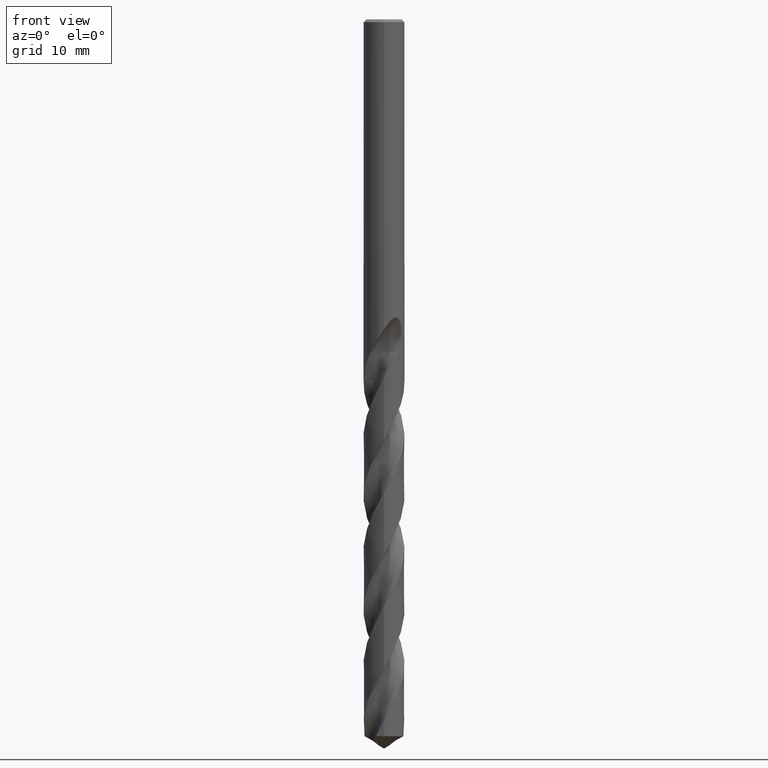
[diagram: clean part render]
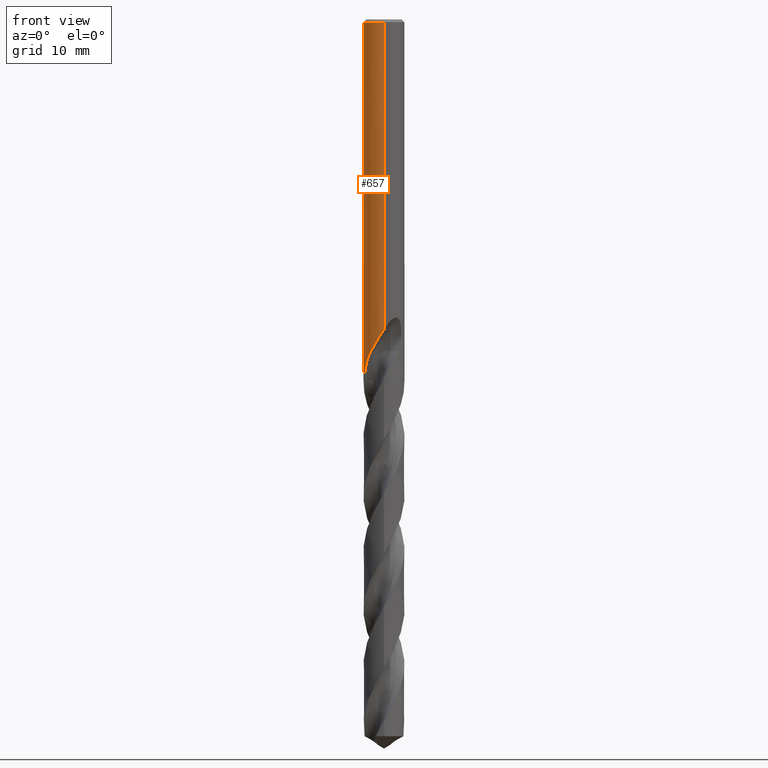
[diagram: same view with one face highlighted and labeled with its STEP entity id]
A machine part, front view. The second image highlights one B-rep face of the part: STEP entity #657.
In plain terms, the highlighted cylindrical surface (edge-blend (fillet) strip) has radius 2.25 mm, axis along (-0, -0, 1).
Its self-contained STEP definition (entity closure, byte-faithful):
#311=EDGE_CURVE('',#643,#327,#874,.T.);
#317=VERTEX_POINT('',#880);
#327=VERTEX_POINT('',#891);
#335=EDGE_CURVE('',#547,#431,#900,.T.);
#363=VERTEX_POINT('',#932);
#375=VERTEX_POINT('',#945);
#379=EDGE_CURVE('',#317,#597,#949,.T.);
#383=VERTEX_POINT('',#954);
#387=EDGE_CURVE('',#433,#547,#958,.T.);
#397=EDGE_CURVE('',#363,#825,#968,.T.);
#409=VERTEX_POINT('',#982);
#431=VERTEX_POINT('',#1007);
#433=VERTEX_POINT('',#1009);
#447=EDGE_CURVE('',#317,#409,#1025,.T.);
#501=EDGE_CURVE('',#729,#527,#1083,.T.);
#525=EDGE_CURVE('',#383,#363,#1109,.T.);
#527=VERTEX_POINT('',#1111);
#547=VERTEX_POINT('',#1132);
#557=EDGE_CURVE('',#699,#375,#1142,.T.);
#589=EDGE_CURVE('',#527,#607,#1177,.T.);
#597=VERTEX_POINT('',#1185);
#607=VERTEX_POINT('',#1196);
#617=VERTEX_POINT('',#1206);
#619=EDGE_CURVE('',#327,#729,#1208,.T.);
#631=VERTEX_POINT('',#1222);
#641=EDGE_CURVE('',#607,#617,#1234,.T.);
#643=VERTEX_POINT('',#1236);
#657=ADVANCED_FACE('',(#1252),#1253,.T.);
#663=EDGE_CURVE('',#409,#699,#1260,.T.);
#699=VERTEX_POINT('',#1299);
#713=EDGE_CURVE('',#617,#631,#1313,.T.);
#729=VERTEX_POINT('',#1331);
#739=EDGE_CURVE('',#631,#597,#1343,.T.);
#779=EDGE_CURVE('',#431,#643,#1386,.T.);
#785=EDGE_CURVE('',#375,#383,#1392,.T.);
#817=EDGE_CURVE('',#825,#433,#1429,.T.);
#825=VERTEX_POINT('',#1438);
#874=ELLIPSE('',#1481,2.50858897209644,2.25);
#880=CARTESIAN_POINT('',(-2.24674421008824,-0.120997745578054,-39.6));
#891=CARTESIAN_POINT('',(-1.337052752443,1.80963806800824,-25.3720803908795));
#900=B_SPLINE_CURVE_WITH_KNOTS('',3,(#2041,#2042,#2043,#2044,#2045,#2046,#2047,#2048,#2049,#2050,#2051,#2052,#2053,#2054,#2055,#2056,#2057,#2058,#2059,#2060),.UNSPECIFIED.,.F.,.F.,(4,2,2,2,2,2,2,2,2,4),(3.42585481594111,3.65338780111599,3.88092078629086,4.10845377146573,4.56351974181548,5.0131408462006,5.23795139839316,5.46276195058572,5.69438435227659,5.92600675396746),.UNSPECIFIED.);
#932=CARTESIAN_POINT('',(-2.60338784749601E-016,2.25,-24.0232688117743));
#945=CARTESIAN_POINT('',(2.75536429610035E-016,-2.25,-0.300000000000001));
#949=CIRCLE('',#2267,2.25);
#954=CARTESIAN_POINT('',(0.0,2.25,-0.300000000000001));
#958=CIRCLE('',#2279,2.25);
#968=B_SPLINE_CURVE_WITH_KNOTS('',3,(#2304,#2305,#2306,#2307,#2308,#2309,#2310,#2311,#2312,#2313,#2314,#2315,#2316,#2317,#2318,#2319,#2320,#2321,#2322,#2323,#2324,#2325,#2326,#2327,#2328,#2329,#2330),.UNSPECIFIED.,.F.,.F.,(4,2,3,2,2,2,2,2,2,2,2,2,4),(-0.546607847444609,-0.273303923722305,0.0,0.273303923722304,0.546607847444609,0.822641546125594,1.09867524480658,1.36979270276528,1.64091016072398,1.91347018473955,2.18603020875512,2.45859023277069,2.73115025678626),.UNSPECIFIED.);
#982=CARTESIAN_POINT('',(-1.43373680585452,-1.73404116777488,-36.407));
#1007=CARTESIAN_POINT('',(-5.89297921147403E-017,2.25,-24.5000801551881));
#1009=CARTESIAN_POINT('',(-0.562333990228013,2.17859598903382,-23.3171221986971));
#1025=B_SPLINE_CURVE_WITH_KNOTS('',3,(#2954,#2955,#2956,#2957,#2958,#2959,#2960,#2961,#2962,#2963,#2964,#2965),.UNSPECIFIED.,.F.,.F.,(4,2,2,2,2,4),(0.0,0.277039730386071,0.834582474701681,2.44289413656914,3.71896867708423,7.12585145621316),.UNSPECIFIED.);
#1083=LINE('',#4937,#4938);
#1109=LINE('',#5411,#5412);
#1111=CARTESIAN_POINT('',(-6.64495226150499E-013,2.25,-34.0152946603124));
#1132=CARTESIAN_POINT('',(-1.0350734039088,1.99777952950786,-23.3171221986971));
#1142=LINE('',#5465,#5466);
#1177=B_SPLINE_CURVE_WITH_KNOTS('',3,(#5791,#5792,#5793,#5794,#5795,#5796,#5797,#5798,#5799,#5800,#5801,#5802,#5803,#5804,#5805,#5806,#5807,#5808,#5809,#5810,#5811,#5812,#5813,#5814,#5815,#5816,#5817,#5818),.UNSPECIFIED.,.F.,.F.,(4,2,2,2,2,2,2,2,2,2,2,2,2,4),(0.0,1.10237676829181,1.70429934614394,2.24948987269152,2.88287034445021,3.64370487399975,4.30313326674304,4.60196331204804,4.82037165425208,5.02704982671978,5.28923341162755,5.67281863326618,6.21813012499619,6.83823133072697),.UNSPECIFIED.);
#1185=CARTESIAN_POINT('',(-2.75536429610035E-016,2.25,-39.6));
#1196=CARTESIAN_POINT('',(-1.8306948674076,1.30807350804436,-35.1749444868824));
#1206=CARTESIAN_POINT('',(-1.56392402088537,1.61760367732573,-36.407));
#1208=B_SPLINE_CURVE_WITH_KNOTS('',3,(#5854,#5855,#5856,#5857,#5858,#5859,#5860,#5861,#5862,#5863,#5864,#5865,#5866,#5867),.UNSPECIFIED.,.F.,.F.,(4,2,2,2,2,2,4),(5.8188043051646,6.47172323101303,6.793197426277,7.11467162154097,7.43614581680495,7.75762001206892,8.07630150693072),.UNSPECIFIED.);
#1222=CARTESIAN_POINT('',(7.62141360492827E-013,2.25,-39.4758575410419));
#1234=B_SPLINE_CURVE_WITH_KNOTS('',3,(#6954,#6955,#6956,#6957),.UNSPECIFIED.,.F.,.F.,(4,4),(0.0,1.29311977624074),.UNSPECIFIED.);
#1236=CARTESIAN_POINT('',(-3.64849752703435E-016,2.25,-24.7128911336578));
#1252=FACE_OUTER_BOUND('',#7762,.T.);
#1253=CYLINDRICAL_SURFACE('',#7763,2.25);
#1260=B_SPLINE_CURVE_WITH_KNOTS('',3,(#7771,#7772,#7773,#7774,#7775,#7776,#7777,#7778,#7779,#7780,#7781,#7782,#7783,#7784,#7785,#7786,#7787,#7788,#7789,#7790,#7791,#7792,#7793,#7794,#7795,#7796,#7797,#7798),.UNSPECIFIED.,.F.,.F.,(4,2,2,2,2,2,2,2,2,2,2,2,2,4),(0.0,1.1023767682918,1.70429934614392,2.24948987269155,2.88287034445032,3.64370487399987,4.30313326674305,4.60196331204811,4.8203716542522,5.02704982671996,5.28923341162779,5.67281863326753,6.21813012500031,6.838231330734),.UNSPECIFIED.);
#1299=CARTESIAN_POINT('',(6.63718070033261E-013,-2.25,-34.0152946603124));
#1313=B_SPLINE_CURVE_WITH_KNOTS('',3,(#9157,#9158,#9159,#9160,#9161,#9162,#9163,#9164,#9165,#9166,#9167,#9168),.UNSPECIFIED.,.F.,.F.,(4,2,2,2,2,4),(0.0,0.446180941970732,0.64376080755081,1.02579387153065,2.18379307084098,3.33894178827122),.UNSPECIFIED.);
#1331=CARTESIAN_POINT('',(1.0146208194845E-016,2.25,-26.0310253601033));
#1343=LINE('',#9333,#9334);
#1386=LINE('',#9595,#9596);
#1392=CIRCLE('',#9605,2.25);
#1429=B_SPLINE_CURVE_WITH_KNOTS('',3,(#11399,#11400,#11401,#11402,#11403,#11404,#11405,#11406,#11407,#11408,#11409,#11410,#11411,#11412,#11413,#11414,#11415,#11416,#11417,#11418,#11419,#11420,#11421,#11422,#11423,#11424,#11425),.UNSPECIFIED.,.F.,.F.,(4,2,3,2,2,2,2,2,2,2,2,2,4),(-0.546607847444609,-0.273303923722305,0.0,0.273303923722304,0.546607847444609,0.822641546125594,1.09867524480658,1.36979270276528,1.64091016072398,1.91347018473955,2.18603020875512,2.45859023277069,2.73115025678626),.UNSPECIFIED.);
#1438=CARTESIAN_POINT('',(-0.486378944383047,2.19680120230776,-23.6432837483006));
#1481=AXIS2_PLACEMENT_3D('',#12376,#12377,#12378);
#2041=CARTESIAN_POINT('',(-1.01234947628301,2.00939009101506,-23.0953600541769));
#2042=CARTESIAN_POINT('',(-1.02770092007692,2.00165589054464,-23.1724894045153));
#2043=CARTESIAN_POINT('',(-1.03510901790186,1.99776107707059,-23.2504575323412));
#2044=CARTESIAN_POINT('',(-1.03510901790186,1.99776107707059,-23.4021461891244));
#2045=CARTESIAN_POINT('',(-1.02770092007692,2.00165589054464,-23.4801143169503));
#2046=CARTESIAN_POINT('',(-0.996998032489108,2.01712429148548,-23.634373017627));
#2047=CARTESIAN_POINT('',(-0.973715210347612,2.02867191592313,-23.7106685745503));
#2048=CARTESIAN_POINT('',(-0.882118904777836,2.07096348867386,-23.9292562403689));
#2049=CARTESIAN_POINT('',(-0.790927506284491,2.10928189883354,-24.0611642338891));
#2050=CARTESIAN_POINT('',(-0.582342420899574,2.17605722946912,-24.2684639523736));
#2051=CARTESIAN_POINT('',(-0.450764232970377,2.20924809367864,-24.358715993071));
#2052=CARTESIAN_POINT('',(-0.233034089170198,2.23909836723642,-24.4490962373762));
#2053=CARTESIAN_POINT('',(-0.157102512143277,2.24581540020094,-24.4720212027126));
#2054=CARTESIAN_POINT('',(-0.00399482882458294,2.251300080497,-24.5021611160728));
#2055=CARTESIAN_POINT('',(0.0731830989520529,2.25005772495401,-24.5093686300866));
#2056=CARTESIAN_POINT('',(0.224998105780096,2.24005286665103,-24.5093686300866));
#2057=CARTESIAN_POINT('',(0.303878460056984,2.23077979608065,-24.5017262978516));
#2058=CARTESIAN_POINT('',(0.459334948555842,2.20402632064121,-24.4704076756946));
#2059=CARTESIAN_POINT('',(0.535915456300973,2.18655491968901,-24.446745405568));
#2060=CARTESIAN_POINT('',(0.608774737177599,2.16607786549199,-24.4159323882126));
#2267=AXIS2_PLACEMENT_3D('',#12444,#12445,#12446);
#2279=AXIS2_PLACEMENT_3D('',#12456,#12457,#12458);
#2304=CARTESIAN_POINT('',(0.666243563490138,2.14909737194664,-22.8147208348016));
#2305=CARTESIAN_POINT('',(0.72900241462786,2.12964144539424,-22.8778258411664));
#2306=CARTESIAN_POINT('',(0.783817425528482,2.10942552696666,-22.9577757356647));
#2307=CARTESIAN_POINT('',(0.857038179259723,2.08075261772318,-23.1340897828637));
#2308=CARTESIAN_POINT('',(0.875400981188567,2.0727211877467,-23.2305407046793));
#2309=CARTESIAN_POINT('',(0.875400981188567,2.0727211877467,-23.3216420125868));
#2310=CARTESIAN_POINT('',(0.875400981188567,2.0727211877467,-23.4127433204942));
#2311=CARTESIAN_POINT('',(0.857038179259723,2.08075261772318,-23.5091942423098));
#2312=CARTESIAN_POINT('',(0.783817425528484,2.10942552696666,-23.6855082895089));
#2313=CARTESIAN_POINT('',(0.729002414627861,2.12964144539424,-23.7654581840072));
#2314=CARTESIAN_POINT('',(0.60285787341817,2.1687476253875,-23.892298493089));
#2315=CARTESIAN_POINT('',(0.522544385979573,2.19034330344267,-23.9477717877875));
#2316=CARTESIAN_POINT('',(0.345309446343115,2.22517815225459,-24.0219052787708));
#2317=CARTESIAN_POINT('',(0.248314704747703,2.23814786696158,-24.0405166027747));
#2318=CARTESIAN_POINT('',(0.0663728539059954,2.25083580709205,-24.0405166027747));
#2319=CARTESIAN_POINT('',(-0.0298590851834042,2.2515432247463,-24.0224955086508));
#2320=CARTESIAN_POINT('',(-0.206684418648593,2.24223549374829,-23.9493466177248));
#2321=CARTESIAN_POINT('',(-0.287300419256653,2.23251123793688,-23.894236745528));
#2322=CARTESIAN_POINT('',(-0.414871948783266,2.21236829732551,-23.7671046595414));
#2323=CARTESIAN_POINT('',(-0.470335817886408,2.20061734057659,-23.68639061848));
#2324=CARTESIAN_POINT('',(-0.544083791614044,2.18355337414944,-23.5091069120264));
#2325=CARTESIAN_POINT('',(-0.562348199187247,2.17859232140179,-23.4124953539253));
#2326=CARTESIAN_POINT('',(-0.562348199187247,2.17859232140179,-23.2307886712483));
#2327=CARTESIAN_POINT('',(-0.544083791614045,2.18355337414944,-23.1341771131472));
#2328=CARTESIAN_POINT('',(-0.470335817886412,2.20061734057659,-22.9568934066936));
#2329=CARTESIAN_POINT('',(-0.414871948783266,2.21236829732551,-22.8761793656322));
#2330=CARTESIAN_POINT('',(-0.350916938130237,2.222466490756,-22.8124446597476));
#2954=CARTESIAN_POINT('',(-2.24674421008824,-0.120997745578046,-39.6));
#2955=CARTESIAN_POINT('',(-2.24429969697041,-0.166388638340092,-39.5196160373227));
#2956=CARTESIAN_POINT('',(-2.24048345570958,-0.211634592657982,-39.4392625232926));
#2957=CARTESIAN_POINT('',(-2.22490349917134,-0.347316539637658,-39.196899178259));
#2958=CARTESIAN_POINT('',(-2.20903271440855,-0.437046110134353,-39.0341698908664));
#2959=CARTESIAN_POINT('',(-2.12615289506448,-0.781875566994609,-38.4052841146113));
#2960=CARTESIAN_POINT('',(-2.02744570640878,-0.996433240374003,-38.0038099416851));
#2961=CARTESIAN_POINT('',(-1.83892838741172,-1.30636882578822,-37.350377208784));
#2962=CARTESIAN_POINT('',(-1.76107179533419,-1.40112631905593,-37.1087764354983));
#2963=CARTESIAN_POINT('',(-1.65558935924928,-1.52839301098088,-36.8014338181939));
#2964=CARTESIAN_POINT('',(-1.55923871504489,-1.63027390448543,-36.5999484206745));
#2965=CARTESIAN_POINT('',(-1.43373680585452,-1.73404116777488,-36.407));
#4937=CARTESIAN_POINT('',(-2.75536429610035E-016,2.25,-36.3));
#4938=VECTOR('',#12591,1.0);
#5411=CARTESIAN_POINT('',(-2.75536429610035E-016,2.25,-36.3));
#5412=VECTOR('',#12612,1.0);
#5465=CARTESIAN_POINT('',(2.75536429610035E-016,-2.25,-36.3));
#5466=VECTOR('',#12630,1.0);
#5791=CARTESIAN_POINT('',(1.43373680585452,1.73404116777488,-36.407));
#5792=CARTESIAN_POINT('',(1.28531840748316,1.85675620151544,-36.094047832029));
#5793=CARTESIAN_POINT('',(1.11467076594076,1.96584135909783,-35.8022756175691));
#5794=CARTESIAN_POINT('',(0.81711210209406,2.09954804117511,-35.3148500324075));
#5795=CARTESIAN_POINT('',(0.710036634719798,2.13801035581372,-35.1433574929603));
#5796=CARTESIAN_POINT('',(0.502752047922386,2.19549362913407,-34.8113922967703));
#5797=CARTESIAN_POINT('',(0.403468463026456,2.21580233585448,-34.65246700864));
#5798=CARTESIAN_POINT('',(0.188561307317867,2.24511283496679,-34.3099407237454));
#5799=CARTESIAN_POINT('',(0.0711426284877253,2.25199414449595,-34.1236586076092));
#5800=CARTESIAN_POINT('',(-0.18961412935512,2.24650927091748,-33.7251397399363));
#5801=CARTESIAN_POINT('',(-0.344216508040498,2.22954453559628,-33.4983781589815));
#5802=CARTESIAN_POINT('',(-0.642347221171545,2.16103276674423,-33.1244639290739));
#5803=CARTESIAN_POINT('',(-0.807291055321116,2.10883543012946,-32.9420083704354));
#5804=CARTESIAN_POINT('',(-1.05693186905045,1.98818290346384,-32.7711572005223));
#5805=CARTESIAN_POINT('',(-1.13956457960837,1.94263382800771,-32.7289330620008));
#5806=CARTESIAN_POINT('',(-1.2843560930484,1.8488471532058,-32.6964973436554));
#5807=CARTESIAN_POINT('',(-1.34374322626081,1.80613599454047,-32.6958916851621));
#5808=CARTESIAN_POINT('',(-1.45435497133746,1.71815991904834,-32.724279673852));
#5809=CARTESIAN_POINT('',(-1.50273103034453,1.67566922866193,-32.75089594029));
#5810=CARTESIAN_POINT('',(-1.60117577401836,1.58255419568909,-32.8341751821428));
#5811=CARTESIAN_POINT('',(-1.6467207682266,1.53429964522004,-32.8956619242979));
#5812=CARTESIAN_POINT('',(-1.7400116437853,1.42893229649101,-33.0640317240673));
#5813=CARTESIAN_POINT('',(-1.78460282261068,1.37155223423012,-33.1889123627394));
#5814=CARTESIAN_POINT('',(-1.86845488675276,1.25633378271584,-33.5383144933761));
#5815=CARTESIAN_POINT('',(-1.89876934940317,1.20725625416177,-33.787154001081));
#5816=CARTESIAN_POINT('',(-1.91815217862639,1.1762528300931,-34.382082225774));
#5817=CARTESIAN_POINT('',(-1.90441817677815,1.20489514441039,-34.7556273268125));
#5818=CARTESIAN_POINT('',(-1.8306948674076,1.30807350804437,-35.1749444868824));
#5854=CARTESIAN_POINT('',(-1.5282408223732,1.65135701434672,-25.0373614253105));
#5855=CARTESIAN_POINT('',(-1.44462014694137,1.72874323994424,-25.2349517416232));
#5856=CARTESIAN_POINT('',(-1.32213559227532,1.82808047409474,-25.4118195330294));
#5857=CARTESIAN_POINT('',(-1.1118044138689,1.95781469062196,-25.6225880765766));
#5858=CARTESIAN_POINT('',(-1.03300320928262,2.00113344478605,-25.6887878295332));
#5859=CARTESIAN_POINT('',(-0.859618454374922,2.08151070309828,-25.8070919330088));
#5860=CARTESIAN_POINT('',(-0.765021624060809,2.11853274638762,-25.8592015892787));
#5861=CARTESIAN_POINT('',(-0.565189186642227,2.18036701972567,-25.9440841973397));
#5862=CARTESIAN_POINT('',(-0.459734659825423,2.20521487166055,-25.976926643835));
#5863=CARTESIAN_POINT('',(-0.244899252875617,2.23927509334912,-26.0205304620026));
#5864=CARTESIAN_POINT('',(-0.135511720584324,2.24847046333673,-26.0312723335086));
#5865=CARTESIAN_POINT('',(0.0778565557195722,2.25116027135023,-26.0312723335086));
#5866=CARTESIAN_POINT('',(0.186541656707251,2.24484609721969,-26.0207125637108));
#5867=CARTESIAN_POINT('',(0.293471096833456,2.23077894810834,-25.9991576773016));
#6954=CARTESIAN_POINT('',(-1.83069486746022,1.30807350797072,-35.1749444869114));
#6955=CARTESIAN_POINT('',(-1.75815672198912,1.40959319306474,-35.5875307061317));
#6956=CARTESIAN_POINT('',(-1.670728868177,1.51434311445256,-36.0025722088964));
#6957=CARTESIAN_POINT('',(-1.56392402088537,1.61760367732573,-36.407));
#7762=EDGE_LOOP('',(#12741,#12742,#12743,#12744,#12745,#12746,#12747,#12748,#12749,#12750,#12751,#12752,#12753,#12754,#12755,#12756,#12757,#12758));
#7763=AXIS2_PLACEMENT_3D('',#12759,#12760,#12761);
#7771=CARTESIAN_POINT('',(-1.43373680585452,-1.73404116777488,-36.407));
#7772=CARTESIAN_POINT('',(-1.28531840748316,-1.85675620151543,-36.094047832029));
#7773=CARTESIAN_POINT('',(-1.11467076594077,-1.96584135909783,-35.8022756175691));
#7774=CARTESIAN_POINT('',(-0.817112102094059,-2.09954804117511,-35.3148500324075));
#7775=CARTESIAN_POINT('',(-0.710036634719795,-2.13801035581372,-35.1433574929603));
#7776=CARTESIAN_POINT('',(-0.502752047922376,-2.19549362913407,-34.8113922967703));
#7777=CARTESIAN_POINT('',(-0.403468463026438,-2.21580233585448,-34.6524670086399));
#7778=CARTESIAN_POINT('',(-0.188561307317883,-2.24511283496679,-34.3099407237454));
#7779=CARTESIAN_POINT('',(-0.0711426284877301,-2.25199414449595,-34.1236586076093));
#7780=CARTESIAN_POINT('',(0.189614129355107,-2.24650927091748,-33.7251397399363));
#7781=CARTESIAN_POINT('',(0.344216508040491,-2.22954453559628,-33.4983781589815));
#7782=CARTESIAN_POINT('',(0.642347221171525,-2.16103276674423,-33.1244639290739));
#7783=CARTESIAN_POINT('',(0.807291055321111,-2.10883543012946,-32.9420083704354));
#7784=CARTESIAN_POINT('',(1.05693186905047,-1.98818290346383,-32.7711572005222));
#7785=CARTESIAN_POINT('',(1.13956457960838,-1.9426338280077,-32.7289330620008));
#7786=CARTESIAN_POINT('',(1.2843560930484,-1.8488471532058,-32.6964973436554));
#7787=CARTESIAN_POINT('',(1.34374322626081,-1.80613599454047,-32.6958916851621));
#7788=CARTESIAN_POINT('',(1.45435497133747,-1.71815991904834,-32.724279673852));
#7789=CARTESIAN_POINT('',(1.50273103034453,-1.67566922866193,-32.75089594029));
#7790=CARTESIAN_POINT('',(1.60117577401836,-1.58255419568909,-32.8341751821428));
#7791=CARTESIAN_POINT('',(1.6467207682266,-1.53429964522004,-32.8956619242979));
#7792=CARTESIAN_POINT('',(1.74001164378545,-1.42893229649085,-33.0640317240676));
#7793=CARTESIAN_POINT('',(1.78460282261078,-1.37155223422999,-33.1889123627398));
#7794=CARTESIAN_POINT('',(1.86845488675274,-1.25633378271587,-33.538314493376));
#7795=CARTESIAN_POINT('',(1.89876934940316,-1.20725625416178,-33.7871540010809));
#7796=CARTESIAN_POINT('',(1.91815217862639,-1.1762528300931,-34.382082225774));
#7797=CARTESIAN_POINT('',(1.90441817677815,-1.20489514441039,-34.7556273268125));
#7798=CARTESIAN_POINT('',(1.8306948674076,-1.30807350804437,-35.1749444868824));
#9157=CARTESIAN_POINT('',(-1.56392402088537,1.61760367732573,-36.407));
#9158=CARTESIAN_POINT('',(-1.51404512914639,1.66582735412566,-36.5385533653317));
#9159=CARTESIAN_POINT('',(-1.46037568910398,1.71335930813163,-36.6722126017206));
#9160=CARTESIAN_POINT('',(-1.37440636860701,1.78175305294413,-36.8674155164113));
#9161=CARTESIAN_POINT('',(-1.3474543925538,1.80223213904362,-36.9264898395859));
#9162=CARTESIAN_POINT('',(-1.26604434756274,1.86118805835185,-37.1004479298057));
#9163=CARTESIAN_POINT('',(-1.2103663262698,1.89801153892202,-37.2152344358323));
#9164=CARTESIAN_POINT('',(-0.966976284289964,2.04274175732008,-37.7124211849644));
#9165=CARTESIAN_POINT('',(-0.769160149302963,2.12522915626521,-38.0921231881785));
#9166=CARTESIAN_POINT('',(-0.355649368868139,2.2319263177543,-38.8474204637513));
#9167=CARTESIAN_POINT('',(-0.1427881450215,2.25553477144369,-39.2225557770311));
#9168=CARTESIAN_POINT('',(0.0700067806360485,2.24891063643378,-39.6));
#9333=CARTESIAN_POINT('',(-2.75536429610035E-016,2.25,-36.3));
#9334=VECTOR('',#12838,1.0);
#9595=CARTESIAN_POINT('',(-2.75536429610035E-016,2.25,-36.3));
#9596=VECTOR('',#12882,1.0);
#9605=AXIS2_PLACEMENT_3D('',#12884,#12885,#12886);
#11399=CARTESIAN_POINT('',(0.666243563490138,2.14909737194664,-22.8147208348016));
#11400=CARTESIAN_POINT('',(0.72900241462786,2.12964144539424,-22.8778258411664));
#11401=CARTESIAN_POINT('',(0.783817425528482,2.10942552696666,-22.9577757356647));
#11402=CARTESIAN_POINT('',(0.857038179259723,2.08075261772318,-23.1340897828637));
#11403=CARTESIAN_POINT('',(0.875400981188567,2.0727211877467,-23.2305407046793));
#11404=CARTESIAN_POINT('',(0.875400981188567,2.0727211877467,-23.3216420125868));
#11405=CARTESIAN_POINT('',(0.875400981188567,2.0727211877467,-23.4127433204942));
#11406=CARTESIAN_POINT('',(0.857038179259723,2.08075261772318,-23.5091942423098));
#11407=CARTESIAN_POINT('',(0.783817425528484,2.10942552696666,-23.6855082895089));
#11408=CARTESIAN_POINT('',(0.729002414627861,2.12964144539424,-23.7654581840072));
#11409=CARTESIAN_POINT('',(0.60285787341817,2.1687476253875,-23.892298493089));
#11410=CARTESIAN_POINT('',(0.522544385979573,2.19034330344267,-23.9477717877875));
#11411=CARTESIAN_POINT('',(0.345309446343115,2.22517815225459,-24.0219052787708));
#11412=CARTESIAN_POINT('',(0.248314704747703,2.23814786696158,-24.0405166027747));
#11413=CARTESIAN_POINT('',(0.0663728539059954,2.25083580709205,-24.0405166027747));
#11414=CARTESIAN_POINT('',(-0.0298590851834042,2.2515432247463,-24.0224955086508));
#11415=CARTESIAN_POINT('',(-0.206684418648593,2.24223549374829,-23.9493466177248));
#11416=CARTESIAN_POINT('',(-0.287300419256653,2.23251123793688,-23.894236745528));
#11417=CARTESIAN_POINT('',(-0.414871948783266,2.21236829732551,-23.7671046595414));
#11418=CARTESIAN_POINT('',(-0.470335817886408,2.20061734057659,-23.68639061848));
#11419=CARTESIAN_POINT('',(-0.544083791614044,2.18355337414944,-23.5091069120264));
#11420=CARTESIAN_POINT('',(-0.562348199187247,2.17859232140179,-23.4124953539253));
#11421=CARTESIAN_POINT('',(-0.562348199187247,2.17859232140179,-23.2307886712483));
#11422=CARTESIAN_POINT('',(-0.544083791614045,2.18355337414944,-23.1341771131472));
#11423=CARTESIAN_POINT('',(-0.470335817886412,2.20061734057659,-22.9568934066936));
#11424=CARTESIAN_POINT('',(-0.414871948783266,2.21236829732551,-22.8761793656322));
#11425=CARTESIAN_POINT('',(-0.350916938130237,2.222466490756,-22.8124446597476));
#12376=CARTESIAN_POINT('',(0.0,0.0,-24.7128911336578));
#12377=DIRECTION('',(-0.442195774284071,0.0,0.896918556617774));
#12378=DIRECTION('',(0.896918556617774,-0.0,0.442195774284071));
#12444=CARTESIAN_POINT('',(0.0,0.0,-39.6));
#12445=DIRECTION('',(0.0,0.0,-1.0));
#12446=DIRECTION('',(0.0,1.0,0.0));
#12456=CARTESIAN_POINT('',(0.0,0.0,-23.3171221986971));
#12457=DIRECTION('',(0.0,-0.0,1.0));
#12458=DIRECTION('',(0.0,1.0,0.0));
#12591=DIRECTION('',(0.0,0.0,-1.0));
#12612=DIRECTION('',(0.0,0.0,-1.0));
#12630=DIRECTION('',(-0.0,-0.0,1.0));
#12741=ORIENTED_EDGE('',*,*,#525,.T.);
#12742=ORIENTED_EDGE('',*,*,#397,.T.);
#12743=ORIENTED_EDGE('',*,*,#817,.T.);
#12744=ORIENTED_EDGE('',*,*,#387,.T.);
#12745=ORIENTED_EDGE('',*,*,#335,.T.);
#12746=ORIENTED_EDGE('',*,*,#779,.T.);
#12747=ORIENTED_EDGE('',*,*,#311,.T.);
#12748=ORIENTED_EDGE('',*,*,#619,.T.);
#12749=ORIENTED_EDGE('',*,*,#501,.T.);
#12750=ORIENTED_EDGE('',*,*,#589,.T.);
#12751=ORIENTED_EDGE('',*,*,#641,.T.);
#12752=ORIENTED_EDGE('',*,*,#713,.T.);
#12753=ORIENTED_EDGE('',*,*,#739,.T.);
#12754=ORIENTED_EDGE('',*,*,#379,.F.);
#12755=ORIENTED_EDGE('',*,*,#447,.T.);
#12756=ORIENTED_EDGE('',*,*,#663,.T.);
#12757=ORIENTED_EDGE('',*,*,#557,.T.);
#12758=ORIENTED_EDGE('',*,*,#785,.T.);
#12759=CARTESIAN_POINT('',(0.0,0.0,-36.3));
#12760=DIRECTION('',(-0.0,-0.0,1.0));
#12761=DIRECTION('',(0.0,1.0,0.0));
#12838=DIRECTION('',(0.0,0.0,-1.0));
#12882=DIRECTION('',(0.0,0.0,-1.0));
#12884=CARTESIAN_POINT('',(0.0,0.0,-0.300000000000001));
#12885=DIRECTION('',(0.0,0.0,-1.0));
#12886=DIRECTION('',(0.0,1.0,0.0));